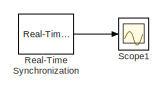
[diagram: root canvas - part 1/3, top center region]
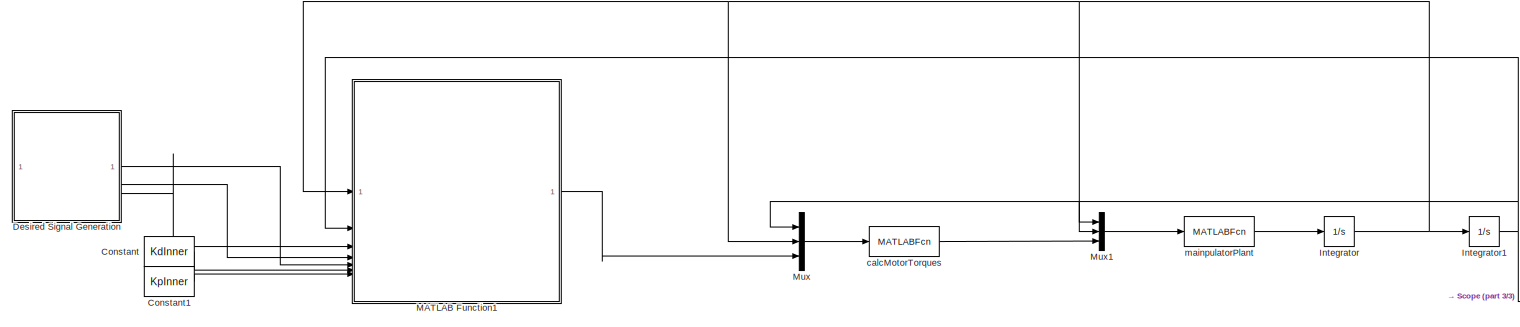
[diagram: root canvas - part 2/3, full width, middle band]
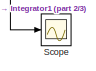
[diagram: root canvas - part 3/3, bottom right region]
MODEL slx_a0e12b87affa
KIND model
CONFIG AbsTol = auto
CONFIG EnableMultiTasking = off
CONFIG FixedStep = auto
CONFIG MaxStep = auto
CONFIG MinStep = auto
CONFIG RelTol = 1e-3
CONFIG SampleTimeConstraint = Unconstrained
CONFIG SolverName = ode23
CONFIG StartTime = 0.0
CONFIG StopTime = tSim
BLOCK [Constant] Constant
  Value = KdInner
BLOCK [Constant] Constant1
  Value = KpInner
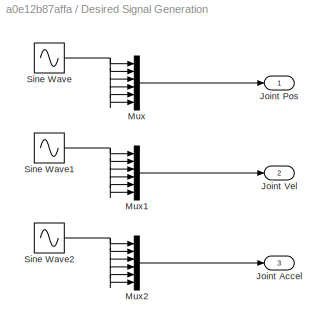
BLOCK [SubSystem] Desired Signal Generation
BLOCK [Outport] Desired Signal Generation/Joint Accel
  Port = 3
BLOCK [Outport] Desired Signal Generation/Joint Pos
BLOCK [Outport] Desired Signal Generation/Joint Vel
  Port = 2
BLOCK [Mux] Desired Signal Generation/Mux
  DisplayOption = bar
  Inputs = 6
BLOCK [Mux] Desired Signal Generation/Mux1
  DisplayOption = bar
  Inputs = 6
BLOCK [Mux] Desired Signal Generation/Mux2
  DisplayOption = bar
  Inputs = 6
BLOCK [Sin] Desired Signal Generation/Sine Wave
  Amplitude = 10
  SampleTime = 0
BLOCK [Sin] Desired Signal Generation/Sine Wave1
  Amplitude = 10
  Phase = pi/2
  SampleTime = 0
BLOCK [Sin] Desired Signal Generation/Sine Wave2
  Amplitude = -10
  SampleTime = 0
BLOCK [Integrator] Integrator
  InitialCondition = qdotIC
BLOCK [Integrator] Integrator1
  InitialCondition = qIC
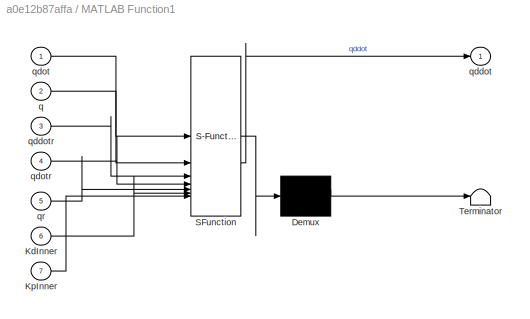
BLOCK [SubSystem] MATLAB Function1
  ErrorFcn = Stateflow.Translate.translate
  LibrarySourceBlock = simulink/User-Defined\nFunctions/MATLAB Function
  PermitHierarchicalResolution = ExplicitOnly
  SFBlockType = MATLAB Function
  TreatAsAtomicUnit = on
BLOCK [Demux] MATLAB Function1/ Demux 
  Outputs = 1
BLOCK [S-Function] MATLAB Function1/ SFunction 
  EnableBusSupport = on
  FunctionName = sf_sfun
  PortCounts = [7 2]
  SFcnIsStateOwnerBlock = off
  SFunctionDeploymentMode = off
  Tag = Stateflow S-Function 1
BLOCK [Terminator] MATLAB Function1/ Terminator 
BLOCK [Inport] MATLAB Function1/KdInner
  Port = 6
BLOCK [Inport] MATLAB Function1/KpInner
  Port = 7
BLOCK [Inport] MATLAB Function1/q
  Port = 2
BLOCK [Outport] MATLAB Function1/qddot
BLOCK [Inport] MATLAB Function1/qddotr
  Port = 3
BLOCK [Inport] MATLAB Function1/qdot
BLOCK [Inport] MATLAB Function1/qdotr
  Port = 4
BLOCK [Inport] MATLAB Function1/qr
  Port = 5
BLOCK [Mux] Mux
  DisplayOption = bar
  Inputs = 3
BLOCK [Mux] Mux1
  DisplayOption = bar
  Inputs = 3
BLOCK [Reference] Real-Time Synchronization  REF=sldrtlib/Real-Time
Synchronization
  SourceBlock = sldrtlib/Real-Time\nSynchronization
  SourceType = Simulink Desktop Real-Time Synchronization
BLOCK [Scope] Scope
  Floating = off
  NumInputPorts = 1
  ScopeSpecificationString = Simulink.scopes.TimeScopeBlockCfg('CurrentConfiguration', extmgr.ConfigurationSet(extmgr.Configuration('Core','General UI',true),extmgr.Configuration('Core','Source UI',true),extmgr.Configuration('Sources','WiredSimulink',true),extmgr.Configuration('Visuals','Time Domain',true,'SerializedDisplays',{struct('MinYLimReal','-14.25859','MaxYLimReal','14.7996','YLabelReal','','MinYLimMag','0.00000','Max...<+1475ch>
BLOCK [Scope] Scope1
  Floating = off
  NumInputPorts = 1
  ScopeSpecificationString = Simulink.scopes.TimeScopeBlockCfg('CurrentConfiguration', extmgr.ConfigurationSet(extmgr.Configuration('Core','General UI',true),extmgr.Configuration('Core','Source UI',true),extmgr.Configuration('Sources','WiredSimulink',true,'DataLoggingVariableName','ScopeData1'),extmgr.Configuration('Visuals','Time Domain',true,'SerializedDisplays',{struct('MinYLimReal','-2.375','MaxYLimReal','21.375','YLabelR...<+1436ch>
BLOCK [MATLABFcn] calcMotorTorques
  MATLABFcn = calcTorques(u,Robot)
  Output1D = off
  OutputDimensions = 6
BLOCK [MATLABFcn] mainpulatorPlant
  MATLABFcn = manipulatorPlant(u,Robot)
LINE Constant1:1 -> MATLAB Function1:7
LINE Constant:1 -> MATLAB Function1:6
LINE Desired Signal Generation/Mux1:1 -> Desired Signal Generation/Joint Vel:1
LINE Desired Signal Generation/Mux2:1 -> Desired Signal Generation/Joint Accel:1
LINE Desired Signal Generation/Mux:1 -> Desired Signal Generation/Joint Pos:1
NET Desired Signal Generation/Sine Wave1:1 -> Desired Signal Generation/Mux1:1, Desired Signal Generation/Mux1:2, Desired Signal Generation/Mux1:3, Desired Signal Generation/Mux1:4, Desired Signal Generation/Mux1:5, Desired Signal Generation/Mux1:6
NET Desired Signal Generation/Sine Wave2:1 -> Desired Signal Generation/Mux2:1, Desired Signal Generation/Mux2:2, Desired Signal Generation/Mux2:3, Desired Signal Generation/Mux2:4, Desired Signal Generation/Mux2:5, Desired Signal Generation/Mux2:6
NET Desired Signal Generation/Sine Wave:1 -> Desired Signal Generation/Mux:1, Desired Signal Generation/Mux:2, Desired Signal Generation/Mux:3, Desired Signal Generation/Mux:4, Desired Signal Generation/Mux:5, Desired Signal Generation/Mux:6
LINE Desired Signal Generation:1 -> MATLAB Function1:5
LINE Desired Signal Generation:2 -> MATLAB Function1:4
LINE Desired Signal Generation:3 -> MATLAB Function1:3
NET Integrator1:1 -> MATLAB Function1:2, Mux1:1, Mux:1, Scope:1
NET Integrator:1 -> Integrator1:1, MATLAB Function1:1, Mux1:2, Mux:2
LINE MATLAB Function1:1 -> Mux:3
LINE Mux1:1 -> mainpulatorPlant:1
LINE Mux:1 -> calcMotorTorques:1
LINE Real-Time Synchronization:1 -> Scope1:1
LINE calcMotorTorques:1 -> Mux1:3
LINE mainpulatorPlant:1 -> Integrator:1
note: NET lines group one-source signal fan-out (src -> all destinations, sorted); 1:1 wires keep LINE
CHART MATLAB Function1 states=1 transitions=1
  STATE_LABEL 'eML_blk_kernel()'
  STATE_LABEL 'SCRIPT:\nfunction qddot = calcTaskSpaceAccelerationController(qdot,q,qddotr,qdotr,qr,KdInner,KpInner)\n\nqddot = (qddotr - KdInner * (qdot-qdotr) - KpInner * (q - qr));  \n'
CHART  states=0 transitions=0
